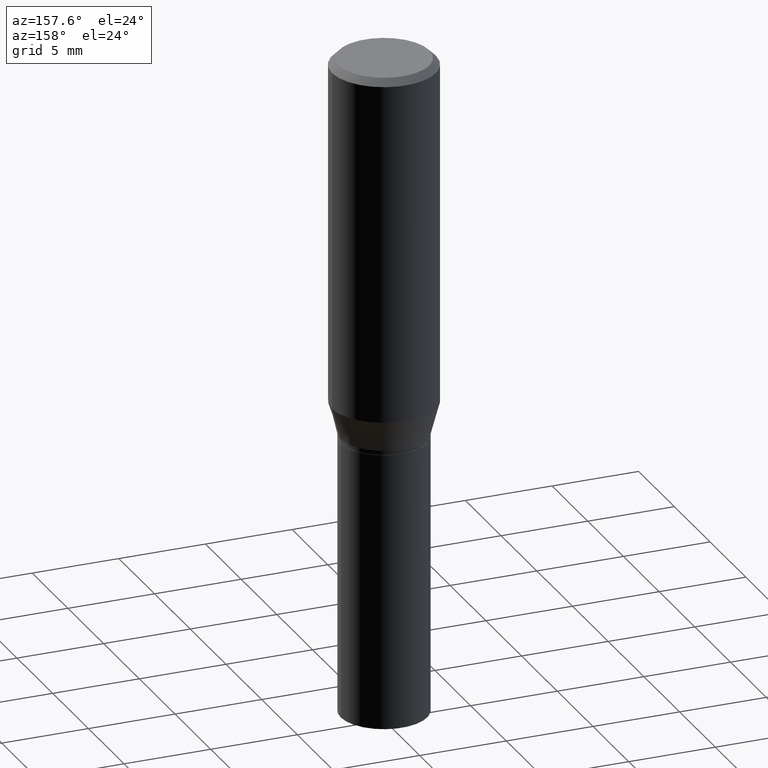
[diagram: clean part render]
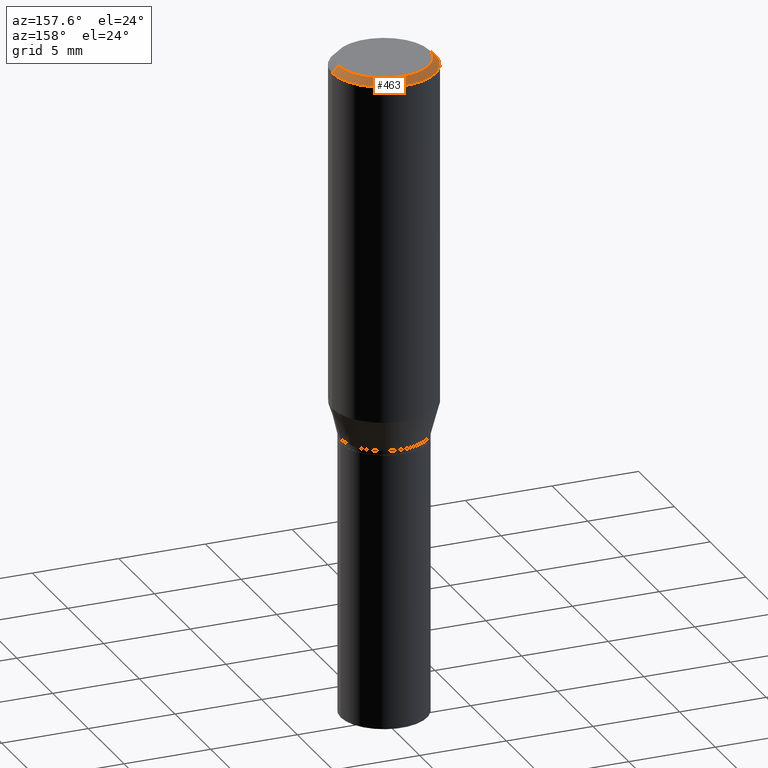
[diagram: same view with one face highlighted and labeled with its STEP entity id]
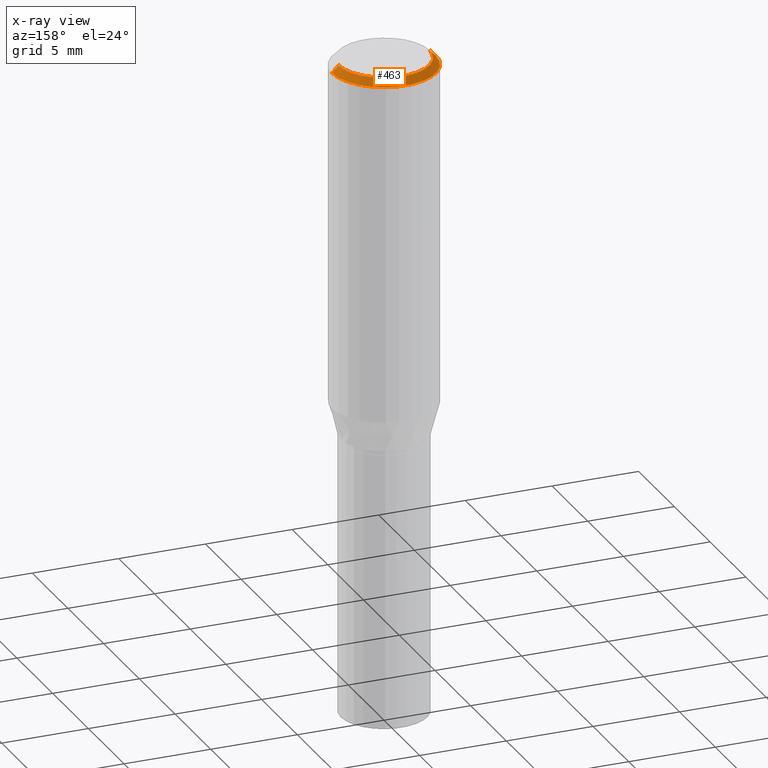
[diagram: x-ray of the same camera — body ghosted, the highlighted face saturated]
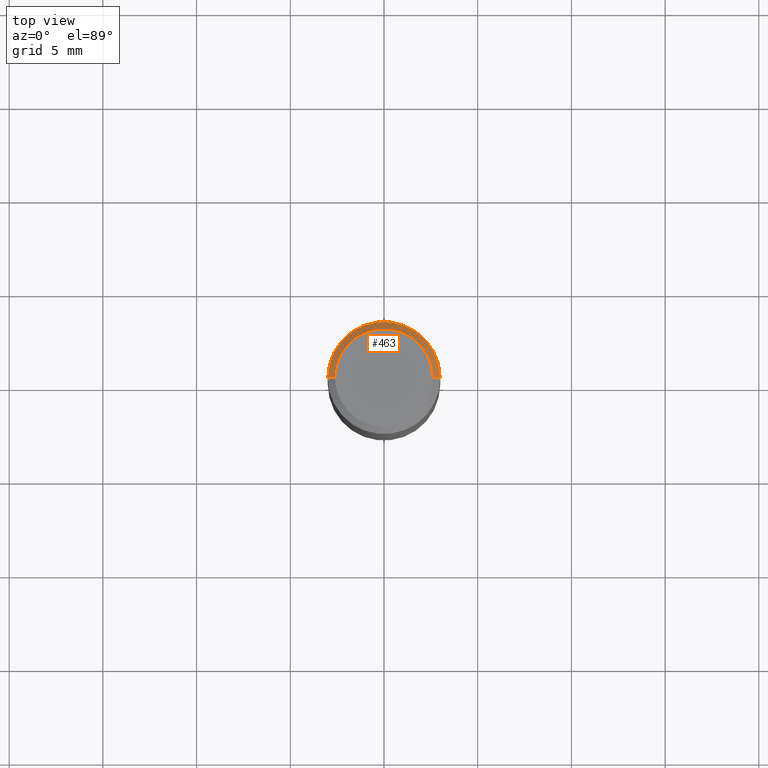
[diagram: same view with one face highlighted and labeled with its STEP entity id]
A machine part, auxiliary view. The second image highlights one B-rep face of the part: STEP entity #463.
The next image is the same camera in x-ray: the body ghosted, the highlighted face saturated — about 0% of this face is hidden behind the body in this view.
A second angle (top view) of the same face is appended — the face is thin or edge-on in the first view.
In plain terms, the highlighted conical surface has half-angle 45 deg.
Its self-contained STEP definition (entity closure, byte-faithful):
#14 = VECTOR ( 'NONE', #452, 39.37007874015748854 ) ;
#59 = LINE ( 'NONE', #288, #282 ) ;
#77 = CARTESIAN_POINT ( 'NONE',  ( -0.1031000000000000111, 7.461295621107772493E-16, -1.900413116462341961E-16 ) ) ;
#83 = DIRECTION ( 'NONE',  ( 1.000000000000000000, -6.982962677686266711E-15, 0.000000000000000000 ) ) ;
#90 = ORIENTED_EDGE ( 'NONE', *, *, #408, .T. ) ;
#92 = EDGE_CURVE ( 'NONE', #147, #451, #431, .T. ) ;
#96 = ORIENTED_EDGE ( 'NONE', *, *, #354, .T. ) ;
#98 = VERTEX_POINT ( 'NONE', #149 ) ;
#110 = DIRECTION ( 'NONE',  ( -1.000000000000000000, 6.982962677686266711E-15, 0.000000000000000000 ) ) ;
#122 = AXIS2_PLACEMENT_3D ( 'NONE', #135, #262, #83 ) ;
#124 = CARTESIAN_POINT ( 'NONE',  ( 0.1180999999999999966, -8.770601123173952432E-16, -0.01499999999999999944 ) ) ;
#135 = CARTESIAN_POINT ( 'NONE',  ( 3.668203209277705088E-31, -5.237222008264718399E-17, -0.01499999999999999944 ) ) ;
#147 = VERTEX_POINT ( 'NONE', #77 ) ;
#149 = CARTESIAN_POINT ( 'NONE',  ( 0.1031000000000000111, -7.849571885948552706E-16, -1.900413116462238423E-16 ) ) ;
#151 = CIRCLE ( 'NONE', #122, 0.1180999999999999966 ) ;
#183 = DIRECTION ( 'NONE',  ( 2.445468806185136597E-29, -3.491481338843145583E-15, -1.000000000000000000 ) ) ;
#192 = DIRECTION ( 'NONE',  ( 1.000000000000000000, -6.982962677686265922E-15, 4.883331232093008327E-29 ) ) ;
#211 = ORIENTED_EDGE ( 'NONE', *, *, #92, .F. ) ;
#214 = EDGE_LOOP ( 'NONE', ( #351, #96, #90, #211 ) ) ;
#238 = AXIS2_PLACEMENT_3D ( 'NONE', #366, #410, #192 ) ;
#262 = DIRECTION ( 'NONE',  ( -2.445468806185136597E-29, 3.491481338843145583E-15, 1.000000000000000000 ) ) ;
#282 = VECTOR ( 'NONE', #418, 39.37007874015748854 ) ;
#284 = FACE_OUTER_BOUND ( 'NONE', #214, .T. ) ;
#288 = CARTESIAN_POINT ( 'NONE',  ( 0.1180999999999999966, -8.625970336194650129E-16, -0.01499999999999999944 ) ) ;
#313 = CARTESIAN_POINT ( 'NONE',  ( -0.1180999999999999966, -5.605231488820216014E-16, -0.01499999999999999944 ) ) ;
#320 = CARTESIAN_POINT ( 'NONE',  ( 3.668203209277705088E-31, -5.237222008264718399E-17, -0.01499999999999999944 ) ) ;
#321 = CARTESIAN_POINT ( 'NONE',  ( -0.1180999999999999966, 7.723156721521009862E-16, -0.01499999999999999944 ) ) ;
#351 = ORIENTED_EDGE ( 'NONE', *, *, #426, .F. ) ;
#354 = EDGE_CURVE ( 'NONE', #98, #425, #59, .T. ) ;
#366 = CARTESIAN_POINT ( 'NONE',  ( 4.647400995173613138E-45, -6.635256932220833331E-31, -1.900413116462290932E-16 ) ) ;
#370 = CONICAL_SURFACE ( 'NONE', #447, 0.1180999999999999966, 0.7853981633974543852 ) ;
#408 = EDGE_CURVE ( 'NONE', #425, #451, #151, .T. ) ;
#410 = DIRECTION ( 'NONE',  ( -2.445468806185136597E-29, 3.491481338843145583E-15, 1.000000000000000000 ) ) ;
#418 = DIRECTION ( 'NONE',  ( 0.7071067811865516806, -7.319954787623268667E-15, -0.7071067811865431318 ) ) ;
#424 = CIRCLE ( 'NONE', #238, 0.1031000000000000111 ) ;
#425 = VERTEX_POINT ( 'NONE', #124 ) ;
#426 = EDGE_CURVE ( 'NONE', #98, #147, #424, .T. ) ;
#431 = LINE ( 'NONE', #321, #14 ) ;
#447 = AXIS2_PLACEMENT_3D ( 'NONE', #320, #183, #110 ) ;
#451 = VERTEX_POINT ( 'NONE', #313 ) ;
#452 = DIRECTION ( 'NONE',  ( -0.7071067811865516806, 2.468850131082300842E-15, -0.7071067811865431318 ) ) ;
#463 = ADVANCED_FACE ( 'NONE', ( #284 ), #370, .T. ) ;